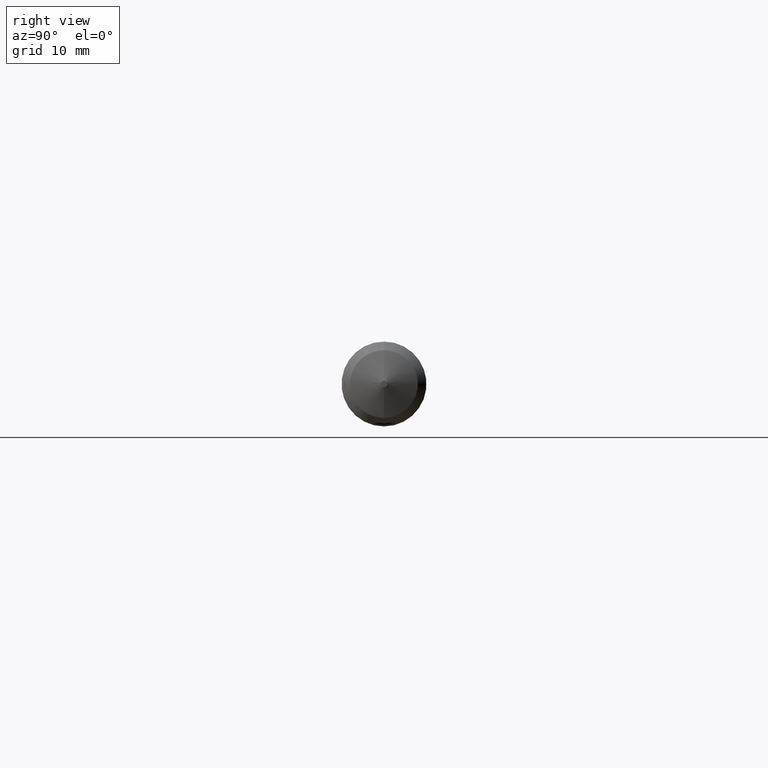
[diagram: clean part render]
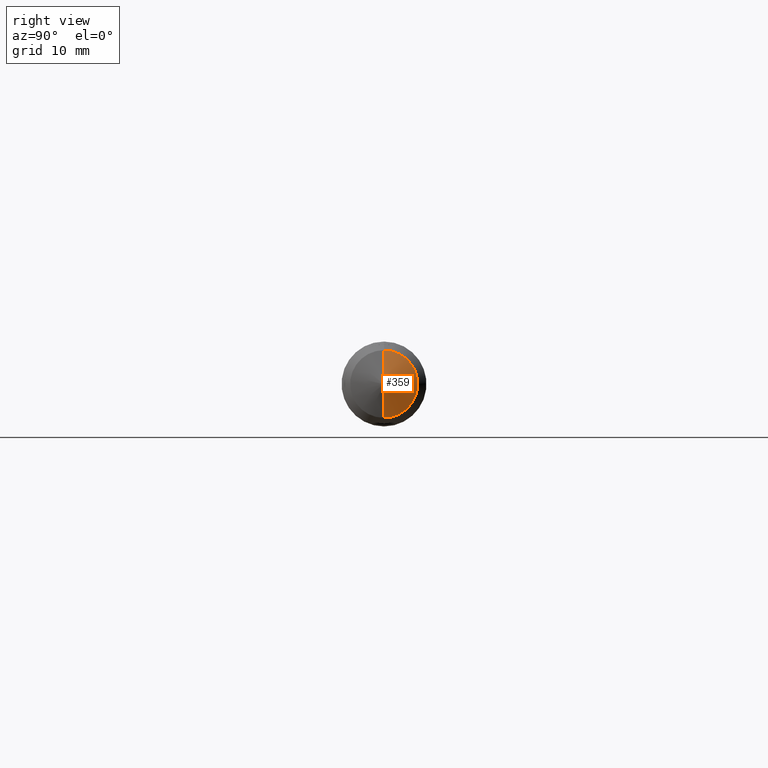
[diagram: same view with one face highlighted and labeled with its STEP entity id]
A machine part, right view. The second image highlights one B-rep face of the part: STEP entity #359.
In plain terms, the highlighted conical surface has half-angle 70 deg.
Its self-contained STEP definition (entity closure, byte-faithful):
#7 = CARTESIAN_POINT ( 'NONE',  ( 4.016000000000000014, 0.000000000000000000, 0.01750000000000049780 ) ) ;
#44 = CARTESIAN_POINT ( 'NONE',  ( 4.016000000000000014, 1.261386203121780101E-17, -0.01750000000000049780 ) ) ;
#51 = EDGE_CURVE ( 'NONE', #386, #424, #416, .T. ) ;
#59 = ORIENTED_EDGE ( 'NONE', *, *, #289, .T. ) ;
#60 = CARTESIAN_POINT ( 'NONE',  ( 4.016000000000000014, 0.000000000000000000, 0.000000000000000000 ) ) ;
#61 = DIRECTION ( 'NONE',  ( 0.000000000000000000, 0.000000000000000000, 1.000000000000000000 ) ) ;
#91 = AXIS2_PLACEMENT_3D ( 'NONE', #60, #92, #61 ) ;
#92 = DIRECTION ( 'NONE',  ( -1.000000000000000000, 0.000000000000000000, 0.000000000000000000 ) ) ;
#103 = ORIENTED_EDGE ( 'NONE', *, *, #425, .T. ) ;
#106 = ORIENTED_EDGE ( 'NONE', *, *, #51, .F. ) ;
#152 = EDGE_CURVE ( 'NONE', #167, #386, #473, .T. ) ;
#155 = DIRECTION ( 'NONE',  ( -0.3420201433256661039, 0.000000000000000000, 0.9396926207859094271 ) ) ;
#167 = VERTEX_POINT ( 'NONE', #44 ) ;
#171 = AXIS2_PLACEMENT_3D ( 'NONE', #261, #408, #264 ) ;
#175 = DIRECTION ( 'NONE',  ( 1.000000000000000000, -0.000000000000000000, -0.000000000000000000 ) ) ;
#233 = LINE ( 'NONE', #307, #244 ) ;
#244 = VECTOR ( 'NONE', #385, 39.37007874015748854 ) ;
#261 = CARTESIAN_POINT ( 'NONE',  ( 4.016000000000000014, 0.000000000000000000, 0.000000000000000000 ) ) ;
#264 = DIRECTION ( 'NONE',  ( 0.000000000000000000, 0.000000000000000000, -1.000000000000000000 ) ) ;
#269 = AXIS2_PLACEMENT_3D ( 'NONE', #330, #175, #467 ) ;
#274 = ORIENTED_EDGE ( 'NONE', *, *, #152, .F. ) ;
#282 = CARTESIAN_POINT ( 'NONE',  ( 3.953761089940480034, 0.000000000000000000, 0.1885000000000005560 ) ) ;
#289 = EDGE_CURVE ( 'NONE', #167, #468, #233, .T. ) ;
#307 = CARTESIAN_POINT ( 'NONE',  ( 4.016000000000000014, 2.143131898507929234E-18, -0.01750000000000049780 ) ) ;
#312 = CONICAL_SURFACE ( 'NONE', #91, 0.01750000000000049780, 1.221730476396033493 ) ;
#320 = FACE_OUTER_BOUND ( 'NONE', #323, .T. ) ;
#323 = EDGE_LOOP ( 'NONE', ( #274, #59, #103, #106 ) ) ;
#330 = CARTESIAN_POINT ( 'NONE',  ( 3.953761089940480034, 0.000000000000000000, 0.000000000000000000 ) ) ;
#331 = VECTOR ( 'NONE', #155, 39.37007874015748854 ) ;
#359 = ADVANCED_FACE ( 'NONE', ( #320 ), #312, .T. ) ;
#361 = CARTESIAN_POINT ( 'NONE',  ( 4.016000000000000014, 0.000000000000000000, 0.01750000000000049780 ) ) ;
#385 = DIRECTION ( 'NONE',  ( -0.3420201433256661039, 1.150791560227851502E-16, -0.9396926207859094271 ) ) ;
#386 = VERTEX_POINT ( 'NONE', #361 ) ;
#400 = CARTESIAN_POINT ( 'NONE',  ( 3.953761089940480034, 2.308459216392768010E-17, -0.1885000000000005560 ) ) ;
#408 = DIRECTION ( 'NONE',  ( 1.000000000000000000, -0.000000000000000000, -0.000000000000000000 ) ) ;
#416 = LINE ( 'NONE', #7, #331 ) ;
#419 = CIRCLE ( 'NONE', #269, 0.1885000000000005282 ) ;
#424 = VERTEX_POINT ( 'NONE', #282 ) ;
#425 = EDGE_CURVE ( 'NONE', #468, #424, #419, .T. ) ;
#467 = DIRECTION ( 'NONE',  ( 0.000000000000000000, 0.000000000000000000, -1.000000000000000000 ) ) ;
#468 = VERTEX_POINT ( 'NONE', #400 ) ;
#473 = CIRCLE ( 'NONE', #171, 0.01750000000000049780 ) ;